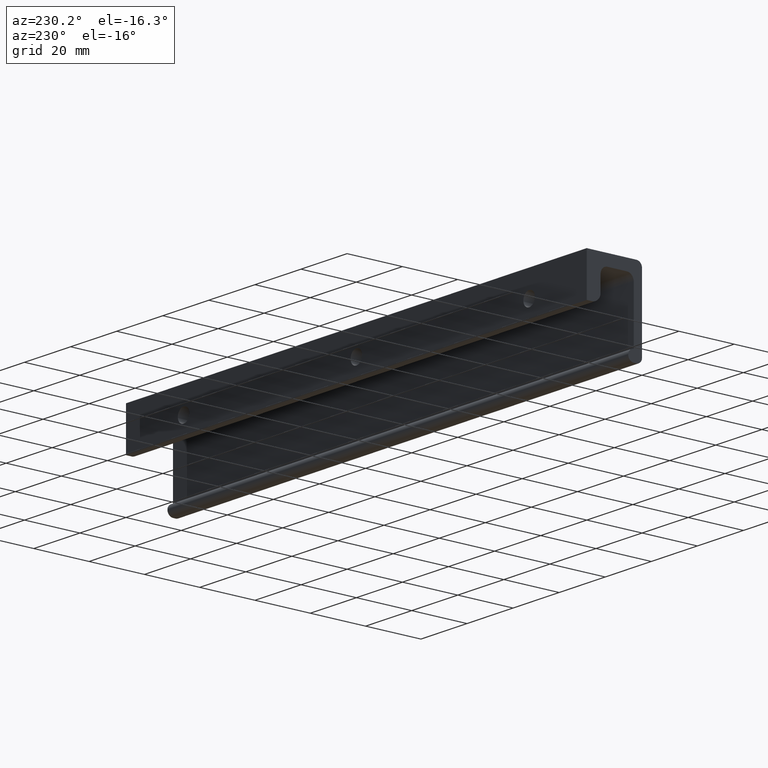
[diagram: clean part render]
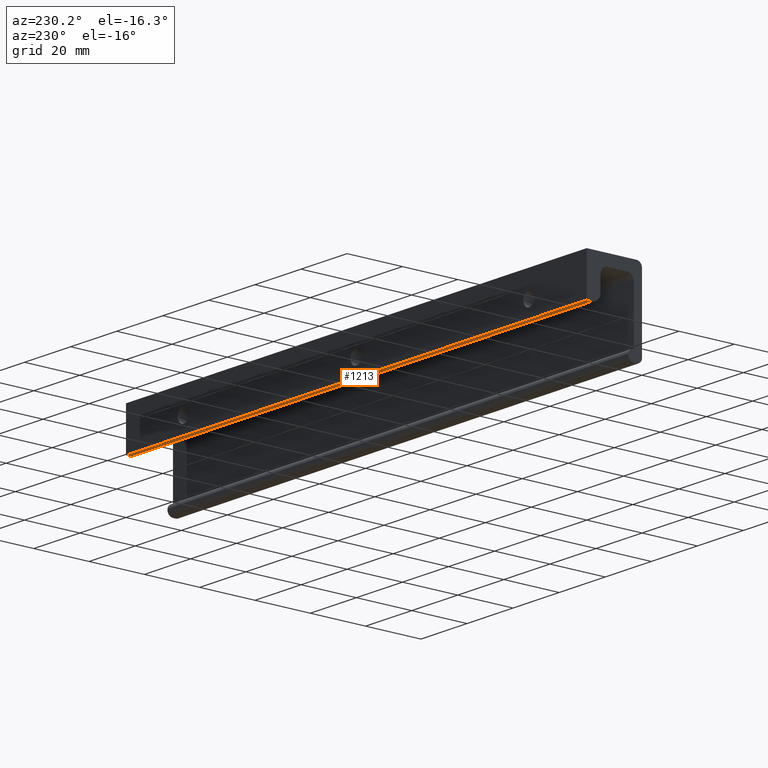
[diagram: same view with one face highlighted and labeled with its STEP entity id]
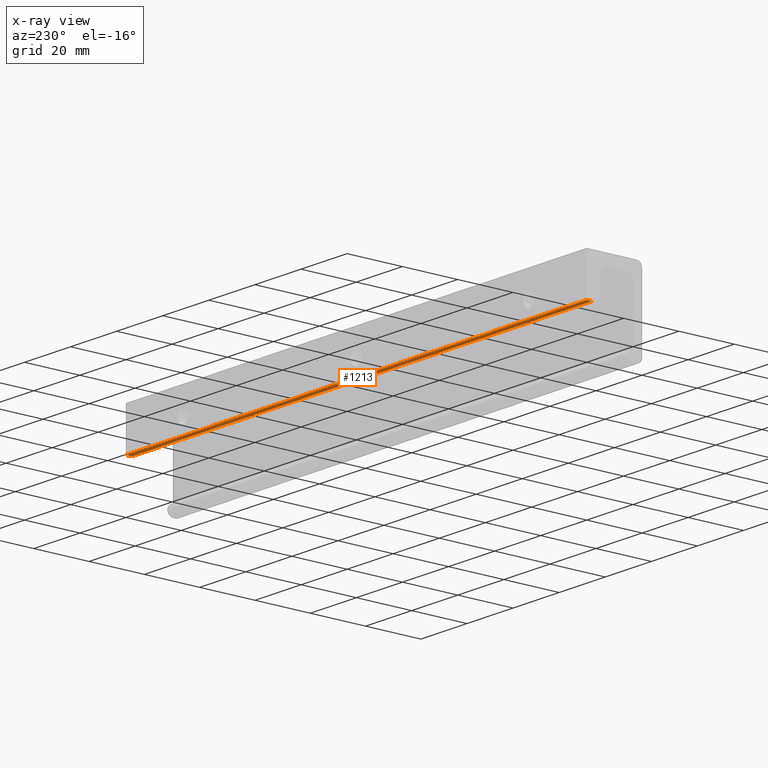
[diagram: x-ray of the same camera — body ghosted, the highlighted face saturated]
A machine part, auxiliary view. The second image highlights one B-rep face of the part: STEP entity #1213.
The next image is the same camera in x-ray: the body ghosted, the highlighted face saturated — about 0% of this face is hidden behind the body in this view.
In plain terms, the highlighted face is a freeform B-spline surface patch.
Its self-contained STEP definition (entity closure, byte-faithful):
#672=CARTESIAN_POINT('',(0.0,0.0,-15.0));
#673=VERTEX_POINT('',#672);
#679=CARTESIAN_POINT('',(0.0,-2.0,-15.0));
#680=VERTEX_POINT('',#679);
#681=CARTESIAN_POINT('',(0.0,0.0,-15.0));
#682=CARTESIAN_POINT('',(0.0,-2.0,-15.0));
#683=QUASI_UNIFORM_CURVE('',1,(#681,#682),.UNSPECIFIED.,.F.,.U.);
#684=EDGE_CURVE('',#673,#680,#683,.T.);
#820=CARTESIAN_POINT('',(200.0,0.0,-15.0));
#821=VERTEX_POINT('',#820);
#938=CARTESIAN_POINT('',(200.0,-2.0,-15.0));
#939=VERTEX_POINT('',#938);
#953=CARTESIAN_POINT('',(200.0,0.0,-15.0));
#954=CARTESIAN_POINT('',(200.0,-2.0,-15.0));
#955=QUASI_UNIFORM_CURVE('',1,(#953,#954),.UNSPECIFIED.,.F.,.U.);
#956=EDGE_CURVE('',#821,#939,#955,.T.);
#1188=CARTESIAN_POINT('',(200.0,-2.0,-15.0));
#1189=CARTESIAN_POINT('',(0.0,-2.0,-15.0));
#1190=QUASI_UNIFORM_CURVE('',1,(#1188,#1189),.UNSPECIFIED.,.F.,.U.);
#1191=EDGE_CURVE('',#939,#680,#1190,.T.);
#1198=CARTESIAN_POINT('',(209.989999612361200,-2.099899996123612,-15.0));
#1199=CARTESIAN_POINT('',(-9.990004976779222,-2.099899996123612,-15.0));
#1200=CARTESIAN_POINT('',(209.989999612361200,0.099900049767792,-15.0));
#1201=CARTESIAN_POINT('',(-9.990004976779222,0.099900049767792,-15.0));
#1202=B_SPLINE_SURFACE_WITH_KNOTS('',1,1,((#1198,#1200),(#1199,#1201)),.UNSPECIFIED.,.F.,.F.,.U.,(2,2),(2,2),(0.0,219.980004589140410),(0.0,2.199800045891404),.UNSPECIFIED.);
#1203=ORIENTED_EDGE('',*,*,#684,.F.);
#1204=CARTESIAN_POINT('',(200.0,0.0,-15.0));
#1205=CARTESIAN_POINT('',(0.0,0.0,-15.0));
#1206=QUASI_UNIFORM_CURVE('',1,(#1204,#1205),.UNSPECIFIED.,.F.,.U.);
#1207=EDGE_CURVE('',#821,#673,#1206,.T.);
#1208=ORIENTED_EDGE('',*,*,#1207,.F.);
#1209=ORIENTED_EDGE('',*,*,#956,.T.);
#1210=ORIENTED_EDGE('',*,*,#1191,.T.);
#1211=EDGE_LOOP('',(#1203,#1208,#1209,#1210));
#1212=FACE_OUTER_BOUND('',#1211,.T.);
#1213=ADVANCED_FACE('',(#1212),#1202,.T.);